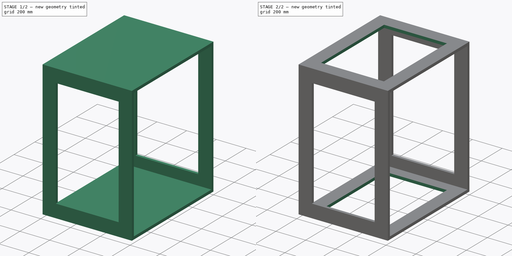
[diagram: build sequence overview — one tinted view per stage of 2, left to right]
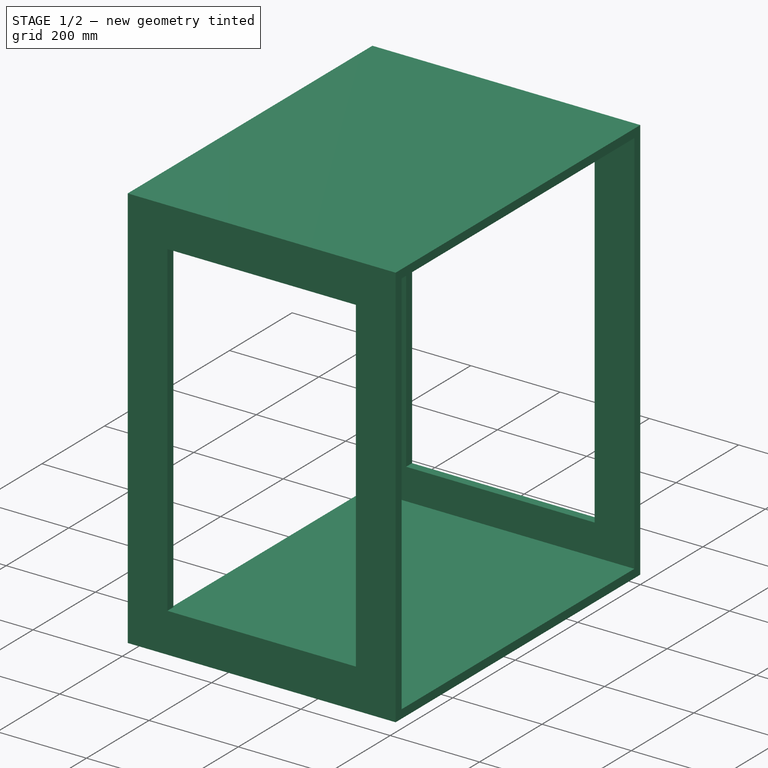
[diagram: stage 1 of 2 — iso view after this stage's code; geometry added in this stage tinted green]
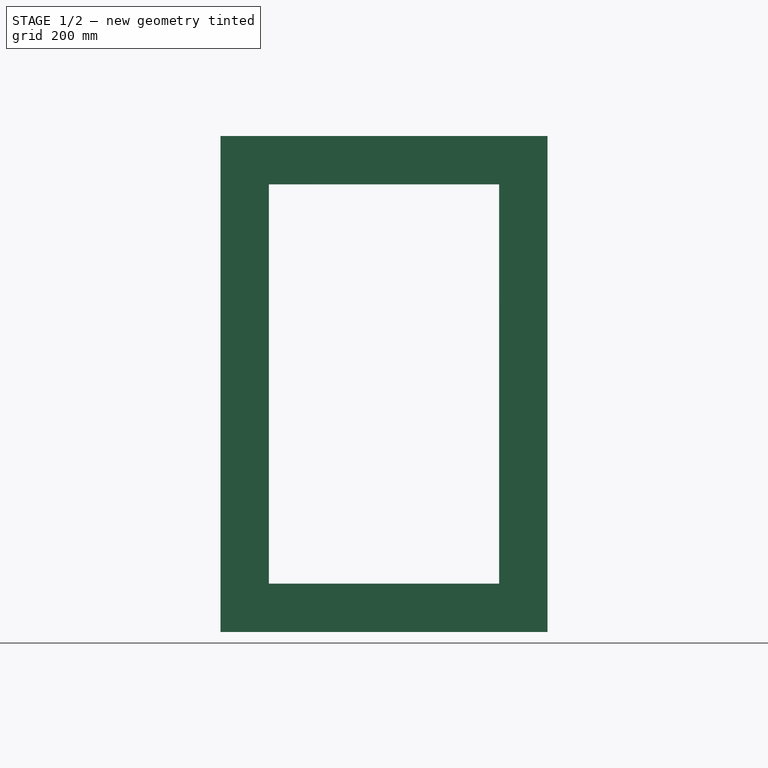
[diagram: stage 1 of 2 — front view after this stage's code; geometry added in this stage tinted green]
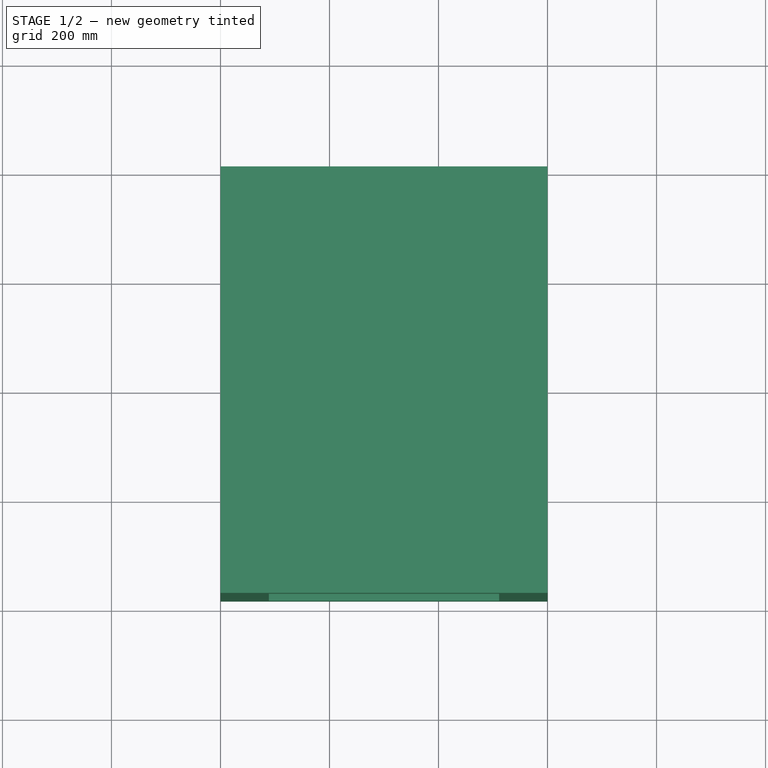
[diagram: stage 1 of 2 — top view after this stage's code; geometry added in this stage tinted green]
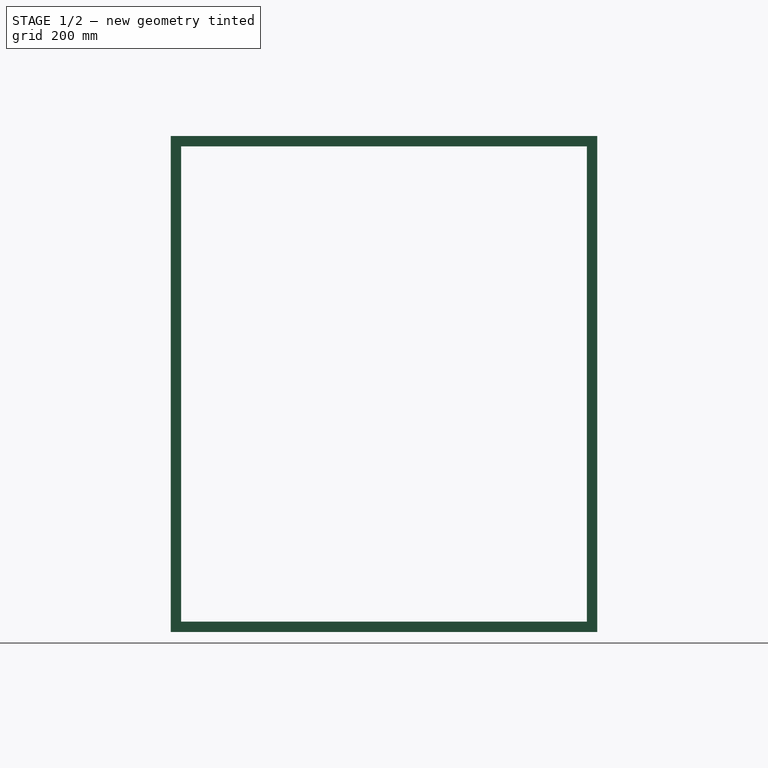
[diagram: stage 1 of 2 — right view after this stage's code; geometry added in this stage tinted green]
FCSTD DOCUMENT  (FreeCAD 0.19R24291 (Git))
Label: leftBuiltIn3-OneQuarter-tall-detail
License: All rights reserved
LicenseURL: http://en.wikipedia.org/wiki/All_rights_reserved
objects: Sketcher::SketchObject×3, PartDesign::Pocket×2, PartDesign::Pad×1, PartDesign::Body×1
note: 10 computed .brp shape members not serialized (recipe doc carries the construction recipe); baked Part::Feature solids carry a one-line shape summary decoded from their .brp

FEATURE [Sketcher::SketchObject] Sketch
  FullyConstrained = false
  MapMode = 5
  Placement = pos=(0,0,0) rot=(0.57735,0.57735,0.57735;2.0944rad)
  Support = -> [YZ_Plane]
  expr: Constraints[39] = 3 / 4 * 25.4
  expr: Constraints[38] = 3 / 4 * 25.4
  expr: Constraints[29] = 8 * 12 * 25.4
  expr: Constraints[95] = 8 * 12 * 25.4
  expr: Constraints[8] = 3130 / 4
  expr: Constraints[50] = 12.5
  expr: Constraints[60] = 3.5 * 25.4
  expr: Constraints[94] = 4 * 12 * 25.4
  expr: Constraints[105] = 744.4
  sketch-geometry (56):
    g0: LineSegment StartX=-782.5 StartY=910 StartZ=0 EndX=0 EndY=910 EndZ=0
    g1: LineSegment StartX=0 StartY=910 StartZ=0 EndX=0 EndY=0 EndZ=0
    g2: LineSegment StartX=0 StartY=0 StartZ=0 EndX=-782.5 EndY=0 EndZ=0
    g3: LineSegment StartX=-782.5 StartY=0 StartZ=0 EndX=-782.5 EndY=910 EndZ=0
    g4: LineSegment StartX=-3667.4 StartY=1853.05 StartZ=0 EndX=-537.403 EndY=1853.05 EndZ=0
    g5: LineSegment StartX=-537.403 StartY=1853.05 StartZ=0 EndX=-537.403 EndY=1128.05 EndZ=0
    g6: LineSegment StartX=-537.403 StartY=1128.05 StartZ=0 EndX=-3667.4 EndY=1128.05 EndZ=0
    g7: LineSegment StartX=-3667.4 StartY=1128.05 StartZ=0 EndX=-3667.4 EndY=1853.05 EndZ=0
    g8: LineSegment StartX=-3581.05 StartY=2612.82 StartZ=0 EndX=-1142.65 EndY=2612.82 EndZ=0
    g9: LineSegment StartX=-1142.65 StartY=2612.82 StartZ=0 EndX=-1142.65 EndY=2361.64 EndZ=0
    g10: LineSegment StartX=-1142.65 StartY=2361.64 StartZ=0 EndX=-3581.05 EndY=2361.64 EndZ=0
    g11: LineSegment StartX=-3581.05 StartY=2361.64 StartZ=0 EndX=-3581.05 EndY=2612.82 EndZ=0
    g12: LineSegment StartX=-763.45 StartY=890.95 StartZ=0 EndX=-19.05 EndY=890.95 EndZ=0
    g13: LineSegment StartX=-19.05 StartY=890.95 StartZ=0 EndX=-19.05 EndY=19.05 EndZ=0
    g14: LineSegment StartX=-19.05 StartY=19.05 StartZ=0 EndX=-763.45 EndY=19.05 EndZ=0
    g15: LineSegment StartX=-763.45 StartY=19.05 StartZ=0 EndX=-763.45 EndY=890.95 EndZ=0
    g16: LineSegment StartX=-750.95 StartY=126.834 StartZ=0 EndX=-31.55 EndY=126.834 EndZ=0
    g17: LineSegment StartX=-31.55 StartY=126.834 StartZ=0 EndX=-31.55 EndY=37.934 EndZ=0
    g18: LineSegment StartX=-31.55 StartY=37.934 StartZ=0 EndX=-750.95 EndY=37.934 EndZ=0
    g19: LineSegment StartX=-750.95 StartY=37.934 StartZ=0 EndX=-750.95 EndY=126.834 EndZ=0
    g20: LineSegment StartX=-750.95 StartY=407.16 StartZ=0 EndX=-31.55 EndY=407.16 EndZ=0
    g21: LineSegment StartX=-31.55 StartY=407.16 StartZ=0 EndX=-31.55 EndY=318.26 EndZ=0
    g22: LineSegment StartX=-31.55 StartY=318.26 StartZ=0 EndX=-750.95 EndY=318.26 EndZ=0
    g23: LineSegment StartX=-750.95 StartY=318.26 StartZ=0 EndX=-750.95 EndY=407.16 EndZ=0
    g24: LineSegment StartX=-750.95 StartY=648.411 StartZ=0 EndX=-31.55 EndY=648.411 EndZ=0
    g25: LineSegment StartX=-31.55 StartY=648.411 StartZ=0 EndX=-31.55 EndY=559.511 EndZ=0
    g26: LineSegment StartX=-31.55 StartY=559.511 StartZ=0 EndX=-750.95 EndY=559.511 EndZ=0
    g27: LineSegment StartX=-750.95 StartY=559.511 StartZ=0 EndX=-750.95 EndY=648.411 EndZ=0
    g28: LineSegment StartX=-750.95 StartY=843.162 StartZ=0 EndX=-31.55 EndY=843.162 EndZ=0
    g29: LineSegment StartX=-31.55 StartY=843.162 StartZ=0 EndX=-31.55 EndY=754.262 EndZ=0
    g30: LineSegment StartX=-31.55 StartY=754.262 StartZ=0 EndX=-750.95 EndY=754.262 EndZ=0
    g31: LineSegment StartX=-750.95 StartY=754.262 StartZ=0 EndX=-750.95 EndY=843.162 EndZ=0
    g32: LineSegment StartX=1519.03 StartY=2659.37 StartZ=0 EndX=3957.43 EndY=2659.37 EndZ=0
    g33: LineSegment StartX=3957.43 StartY=2659.37 StartZ=0 EndX=3957.43 EndY=1440.17 EndZ=0
    g34: LineSegment StartX=3957.43 StartY=1440.17 StartZ=0 EndX=1519.03 EndY=1440.17 EndZ=0
    g35: LineSegment StartX=1519.03 StartY=1440.17 StartZ=0 EndX=1519.03 EndY=2659.37 EndZ=0
    g36: LineSegment StartX=1930.3 StartY=823.535 StartZ=0 EndX=2674.7 EndY=823.535 EndZ=0
    g37: LineSegment StartX=2674.7 StartY=823.535 StartZ=0 EndX=2674.7 EndY=223.535 EndZ=0
    g38: LineSegment StartX=2674.7 StartY=223.535 StartZ=0 EndX=1930.3 EndY=223.535 EndZ=0
    g39: LineSegment StartX=1930.3 StartY=223.535 StartZ=0 EndX=1930.3 EndY=823.535 EndZ=0
    g40: LineSegment StartX=1528.54 StartY=2649.62 StartZ=0 EndX=2272.94 EndY=2649.62 EndZ=0
    g41: LineSegment StartX=2272.94 StartY=2649.62 StartZ=0 EndX=2272.94 EndY=2049.62 EndZ=0
    g42: LineSegment StartX=2272.94 StartY=2049.62 StartZ=0 EndX=1528.54 EndY=2049.62 EndZ=0
    g43: LineSegment StartX=1528.54 StartY=2049.62 StartZ=0 EndX=1528.54 EndY=2649.62 EndZ=0
    g44: LineSegment StartX=1536.3 StartY=1434.82 StartZ=0 EndX=1536.3 EndY=2034.82 EndZ=0
    g45: LineSegment StartX=1536.3 StartY=2034.82 StartZ=0 EndX=2280.7 EndY=2034.82 EndZ=0
    g46: LineSegment StartX=2280.7 StartY=2034.82 StartZ=0 EndX=2280.7 EndY=1434.82 EndZ=0
    g47: LineSegment StartX=2280.7 StartY=1434.82 StartZ=0 EndX=1536.3 EndY=1434.82 EndZ=0
    g48: LineSegment StartX=2330.57 StartY=2055.59 StartZ=0 EndX=3074.97 EndY=2055.59 EndZ=0
    g49: LineSegment StartX=3074.97 StartY=2055.59 StartZ=0 EndX=3074.97 EndY=1455.59 EndZ=0
    g50: LineSegment StartX=3074.97 StartY=1455.59 StartZ=0 EndX=2330.57 EndY=1455.59 EndZ=0
    g51: LineSegment StartX=2330.57 StartY=1455.59 StartZ=0 EndX=2330.57 EndY=2055.59 EndZ=0
    g52: LineSegment StartX=3159.52 StartY=2065.68 StartZ=0 EndX=3903.92 EndY=2065.68 EndZ=0
    g53: LineSegment StartX=3903.92 StartY=2065.68 StartZ=0 EndX=3903.92 EndY=1465.68 EndZ=0
    g54: LineSegment StartX=3903.92 StartY=1465.68 StartZ=0 EndX=3159.52 EndY=1465.68 EndZ=0
    g55: LineSegment StartX=3159.52 StartY=1465.68 StartZ=0 EndX=3159.52 EndY=2065.68 EndZ=0
  constraints (146):
    c: Coincident(g0,g1)
    c: Coincident(g1,g2)
    c: Coincident(g2,g3)
    c: Coincident(g3,g0)
    c: Horizontal(g0)
    c: Horizontal(g2)
    c: Vertical(g1)
    c: Vertical(g3)
    c: DistanceX(g2,g2) = 782.5
    c: DistanceY(g3,g3) = 910
    c: Coincident(g4,g5)
    c: Coincident(g5,g6)
    c: Coincident(g6,g7)
    c: Coincident(g7,g4)
    c: Horizontal(g4)
    c: Horizontal(g6)
    c: Vertical(g5)
    c: Vertical(g7)
    c: DistanceY(g7,g7) = 725
    c: DistanceX(g6,g6) = 3130
    c: Coincident(g1,g-1)
    c: Coincident(g8,g9)
    c: Coincident(g9,g10)
    c: Coincident(g10,g11)
    c: Coincident(g11,g8)
    c: Horizontal(g8)
    c: Horizontal(g10)
    c: Vertical(g9)
    c: Vertical(g11)
    c: DistanceX(g10,g10) = 2438.4
    c: Coincident(g12,g13)
    c: Coincident(g13,g14)
    c: Coincident(g14,g15)
    c: Coincident(g15,g12)
    c: Horizontal(g12)
    c: Horizontal(g14)
    c: Vertical(g13)
    c: Vertical(g15)
    c: DistanceX(g13,g1) = 19.05
    c: DistanceY(g1,g13) = 19.05
    c: DistanceX(g2,g14) = 19.05
    c: DistanceY(g12,g0) = 19.05
    c: Coincident(g16,g17)
    c: Coincident(g17,g18)
    c: Coincident(g18,g19)
    c: Coincident(g19,g16)
    c: Horizontal(g16)
    c: Horizontal(g18)
    c: Vertical(g17)
    c: Vertical(g19)
    c: DistanceX(g14,g18) = 12.5
    c: DistanceX(g17,g13) = 12.5
    c: Coincident(g20,g21)
    c: Coincident(g21,g22)
    c: Coincident(g22,g23)
    c: Coincident(g23,g20)
    c: Horizontal(g20)
    c: Horizontal(g22)
    c: Vertical(g21)
    c: Vertical(g23)
    c: DistanceY(g18,g16) = 88.9
    c: Equal(g19,g23)
    c: Equal(g22,g18)
    c: Vertical(g18,g22)
    c: Coincident(g24,g25)
    c: Coincident(g25,g26)
    c: Coincident(g26,g27)
    c: Coincident(g27,g24)
    c: Horizontal(g24)
    c: Horizontal(g26)
    c: Vertical(g25)
    c: Vertical(g27)
    c: Equal(g26,g22)
    c: Equal(g23,g27)
    c: Vertical(g26,g16)
    c: Coincident(g28,g29)
    c: Coincident(g29,g30)
    c: Coincident(g30,g31)
    c: Coincident(g31,g28)
    c: Horizontal(g28)
    c: Horizontal(g30)
    c: Vertical(g29)
    c: Vertical(g31)
    c: Equal(g30,g18)
    c: Equal(g31,g19)
    c: Vertical(g16,g30)
    c: Coincident(g32,g33)
    c: Coincident(g33,g34)
    c: Coincident(g34,g35)
    c: Coincident(g35,g32)
    c: Horizontal(g32)
    c: Horizontal(g34)
    c: Vertical(g33)
    c: Vertical(g35)
    c: DistanceY(g35,g35) = 1219.2
    c: DistanceX(g34,g34) = 2438.4
    c: Coincident(g36,g37)
    c: Coincident(g37,g38)
    c: Coincident(g38,g39)
    c: Coincident(g39,g36)
    c: Horizontal(g36)
    c: Horizontal(g38)
    c: Vertical(g37)
    c: Vertical(g39)
    c: DistanceY(g39,g39) = 600
    c: DistanceX(g38,g38) = 744.4
    c: Coincident(g40,g41)
    c: Coincident(g41,g42)
    c: Coincident(g42,g43)
    c: Coincident(g43,g40)
    c: Horizontal(g40)
    c: Horizontal(g42)
    c: Vertical(g41)
    c: Vertical(g43)
    c: Equal(g39,g43) = 600
    c: Equal(g38,g42) = 744.4
    c: Coincident(g45,g46)
    c: Coincident(g46,g47)
    c: Coincident(g47,g44)
    c: Coincident(g44,g45)
    c: Horizontal(g45)
    c: Horizontal(g47)
    c: Vertical(g46)
    c: Vertical(g44)
    c: Equal(g39,g44) = 600
    c: Equal(g38,g47) = 744.4
    c: Coincident(g48,g49)
    c: Coincident(g49,g50)
    c: Coincident(g50,g51)
    c: Coincident(g51,g48)
    c: Horizontal(g48)
    c: Horizontal(g50)
    c: Vertical(g49)
    c: Vertical(g51)
    c: Equal(g39,g51) = 600
    c: Equal(g38,g50) = 744.4
    c: Coincident(g52,g53)
    c: Coincident(g53,g54)
    c: Coincident(g54,g55)
    c: Coincident(g55,g52)
    c: Horizontal(g52)
    c: Horizontal(g54)
    c: Vertical(g53)
    c: Vertical(g55)
    c: Equal(g39,g55) = 600
    c: Equal(g38,g54) = 744.4
FEATURE [PartDesign::Pad] Pad
  Direction = (1,1,1)
  Length = 600
  Length2 = 100
  Placement = pos=(0,0,0) rot=(0.57735,0.57735,0.57735;2.0944rad)
  Profile = -> Sketch
  Type = 0
FEATURE [Sketcher::SketchObject] Sketch001
  ExternalGeometry = -> [Pad]
  FullyConstrained = true
  MapMode = 5
  Placement = pos=(-3.443e-13,-782.5,1.722e-13) rot=(-0.57735,-0.57735,0.57735;4.18879rad)
  Support = -> [Pad]
  expr: Constraints[8] = 3.5 * 25.4
  sketch-geometry (4):
    g0: LineSegment StartX=-821.1 StartY=88.9 StartZ=0 EndX=-88.9 EndY=88.9 EndZ=0
    g1: LineSegment StartX=-88.9 StartY=88.9 StartZ=0 EndX=-88.9 EndY=511.1 EndZ=0
    g2: LineSegment StartX=-88.9 StartY=511.1 StartZ=0 EndX=-821.1 EndY=511.1 EndZ=0
    g3: LineSegment StartX=-821.1 StartY=511.1 StartZ=0 EndX=-821.1 EndY=88.9 EndZ=0
  constraints (12):
    c: Coincident(g0,g1)
    c: Coincident(g1,g2)
    c: Coincident(g2,g3)
    c: Coincident(g3,g0)
    c: Horizontal(g0)
    c: Horizontal(g2)
    c: Vertical(g1)
    c: Vertical(g3)
    c: DistanceY(g-1,g0) = 88.9
    c: DistanceX(g0,g-1) = 88.9
    c: DistanceY(g1,g-4) = 88.9
    c: DistanceX(g-3,g0) = 88.9
FEATURE [PartDesign::Pocket] Pocket
  BaseFeature = -> Pad
  Length = 5
  Length2 = 100
  Placement = pos=(0,0,0) rot=(0.57735,0.57735,0.57735;2.0944rad)
  Profile = -> Sketch001
  Type = 1
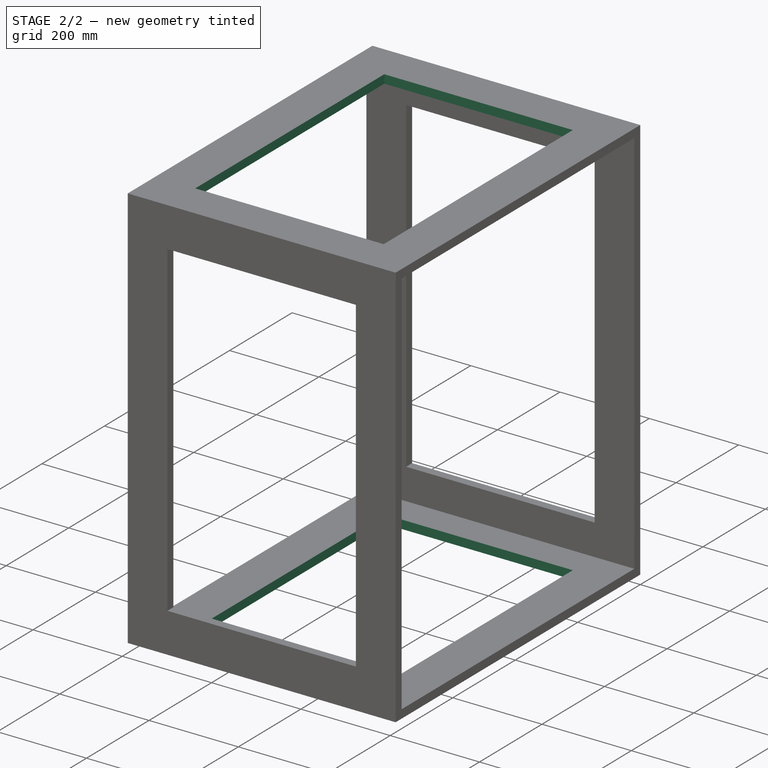
[diagram: stage 2 of 2 — iso view after this stage's code; geometry added in this stage tinted green]
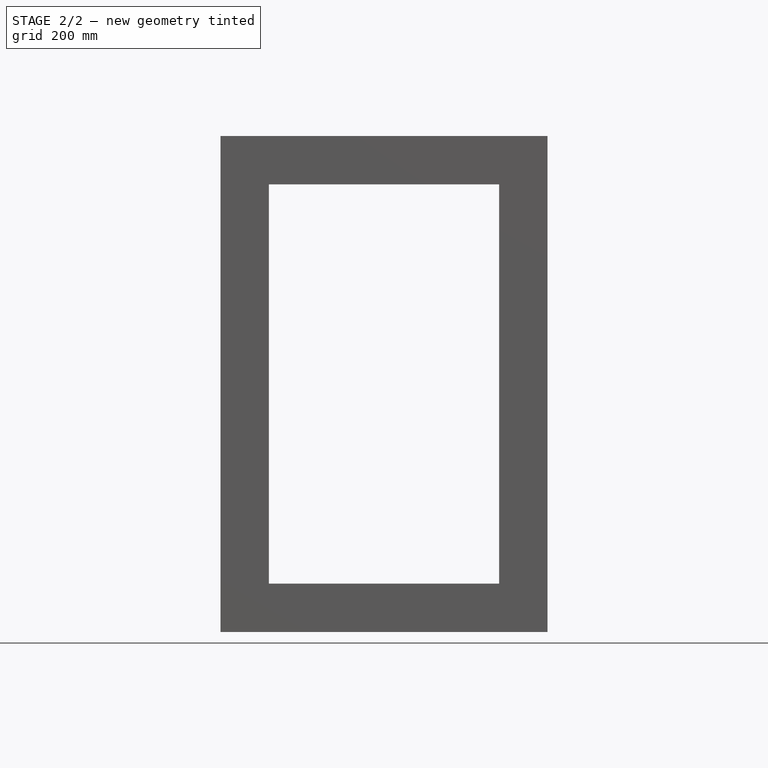
[diagram: stage 2 of 2 — front view after this stage's code; geometry added in this stage tinted green]
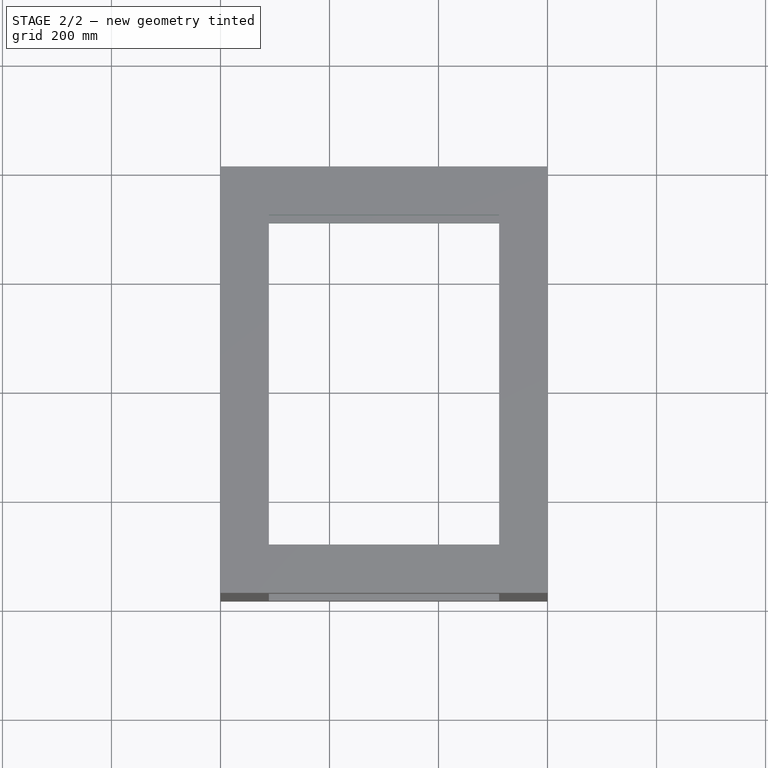
[diagram: stage 2 of 2 — top view after this stage's code; geometry added in this stage tinted green]
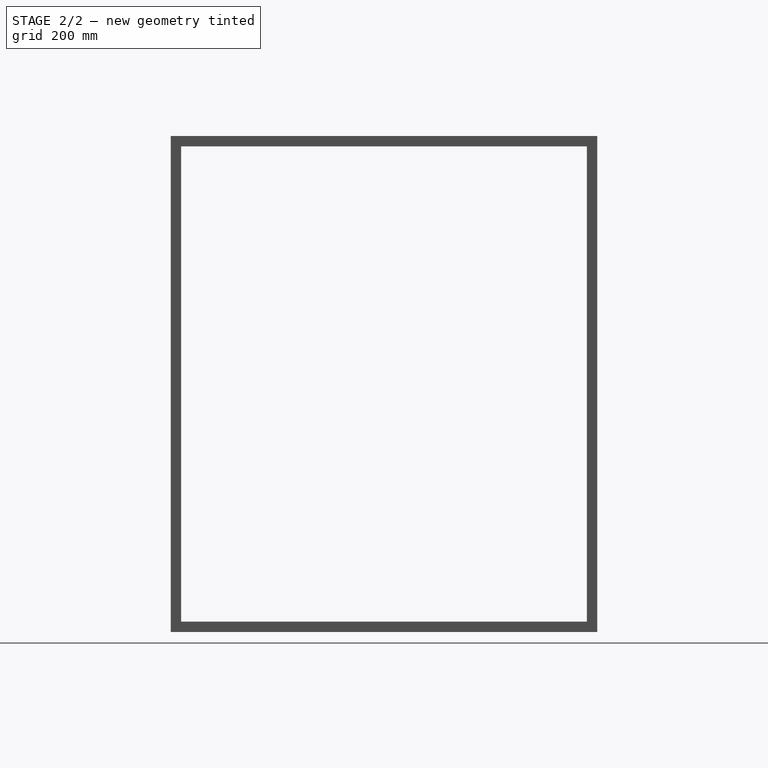
[diagram: stage 2 of 2 — right view after this stage's code; geometry added in this stage tinted green]
FEATURE [Sketcher::SketchObject] Sketch002
  ExternalGeometry = -> [Pad]
  FullyConstrained = true
  MapMode = 5
  Placement = pos=(-2.548e-13,4.004e-13,910) rot=(0,0,-1;1.5708rad)
  Support = -> [Pocket]
  sketch-geometry (4):
    g0: LineSegment StartX=88.9 StartY=88.9 StartZ=0 EndX=693.6 EndY=88.9 EndZ=0
    g1: LineSegment StartX=693.6 StartY=88.9 StartZ=0 EndX=693.6 EndY=511.1 EndZ=0
    g2: LineSegment StartX=693.6 StartY=511.1 StartZ=0 EndX=88.9 EndY=511.1 EndZ=0
    g3: LineSegment StartX=88.9 StartY=511.1 StartZ=0 EndX=88.9 EndY=88.9 EndZ=0
  constraints (12):
    c: Coincident(g0,g1)
    c: Coincident(g1,g2)
    c: Coincident(g2,g3)
    c: Coincident(g3,g0)
    c: Horizontal(g0)
    c: Horizontal(g2)
    c: Vertical(g1)
    c: Vertical(g3)
    c: DistanceX(g0,g-4) = 88.9
    c: DistanceY(g-4,g0) = 88.9
    c: DistanceY(g1,g-4) = 88.9
    c: DistanceX(g-1,g0) = 88.9
FEATURE [PartDesign::Pocket] Pocket001
  BaseFeature = -> Pocket
  Length = 5
  Length2 = 100
  Placement = pos=(0,0,0) rot=(0.57735,0.57735,0.57735;2.0944rad)
  Profile = -> Sketch002
  Type = 1
FEATURE [PartDesign::Body] Body
  Group = -> [Sketch,Pad,Sketch001,Pocket,Sketch002,Pocket001]
  Origin = -> Origin
  Tip = -> Pocket001
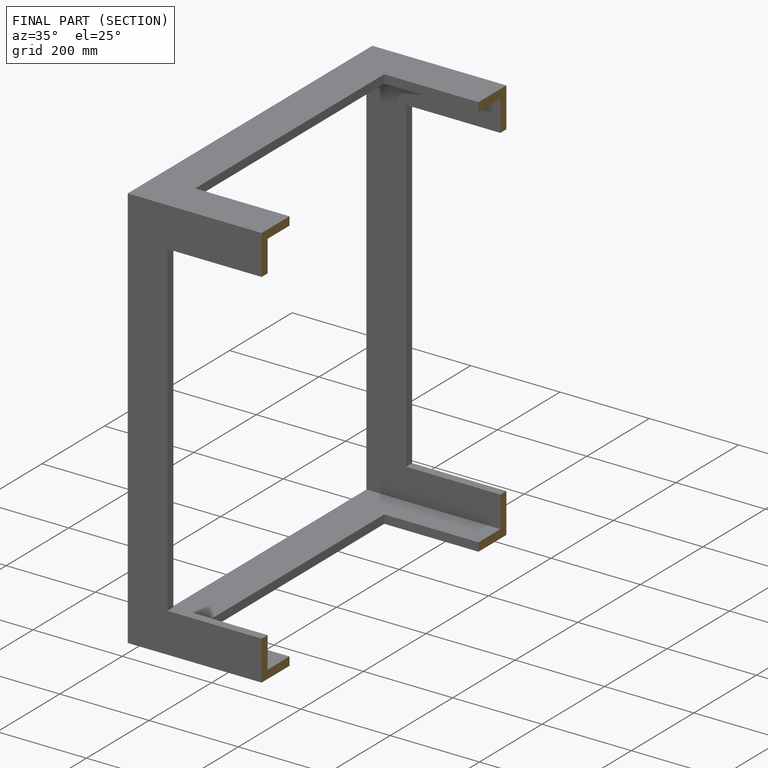
[diagram: finished part — half-section view (interior)]
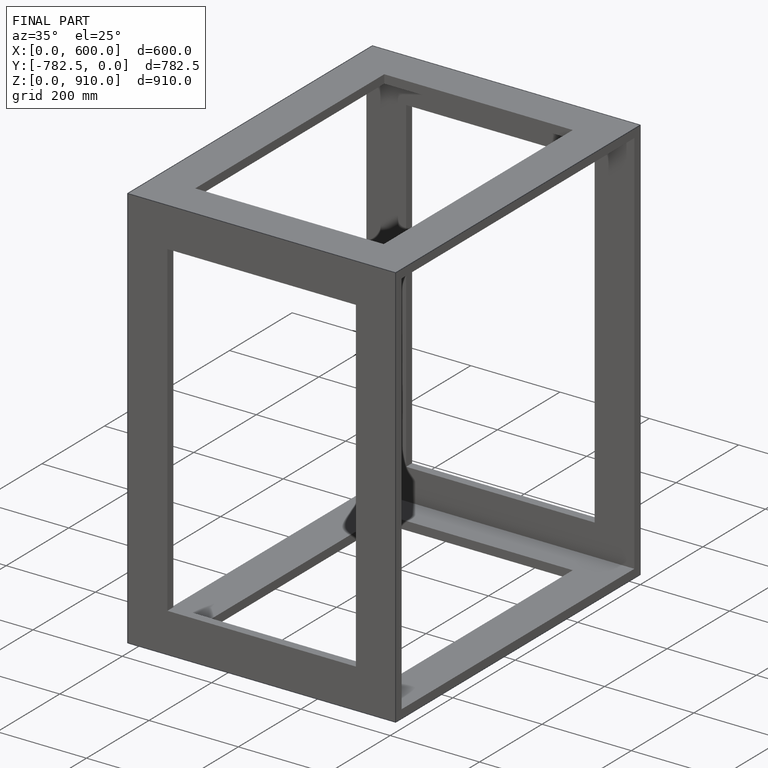
[diagram: finished part — iso view with bounding-box wireframe]
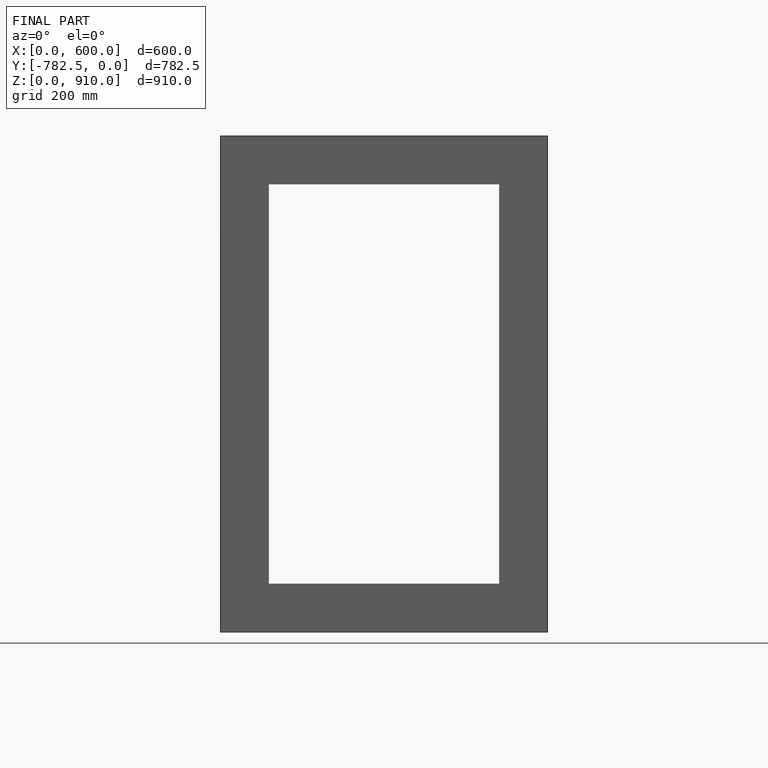
[diagram: finished part — front view with bounding-box wireframe]
